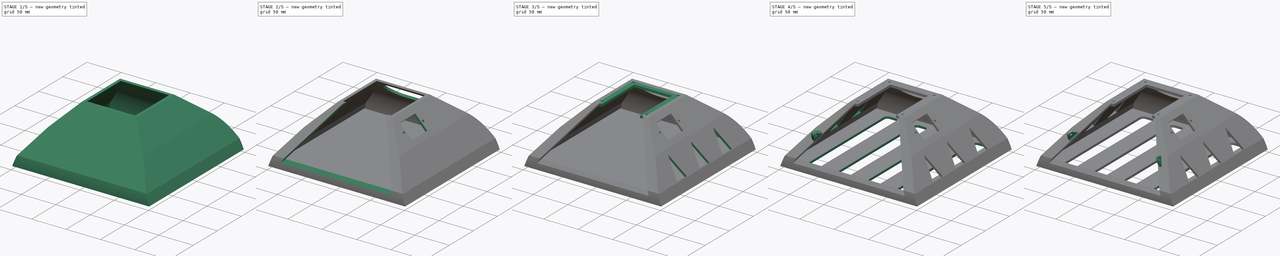
[diagram: build sequence overview — one tinted view per stage of 5, left to right]
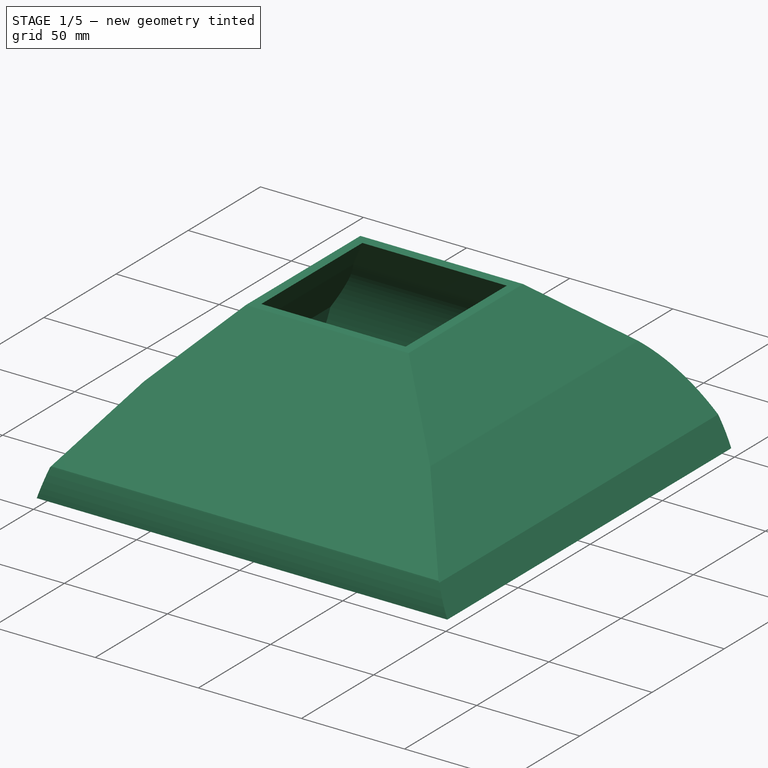
[diagram: stage 1 of 5 — iso view after this stage's code; geometry added in this stage tinted green]
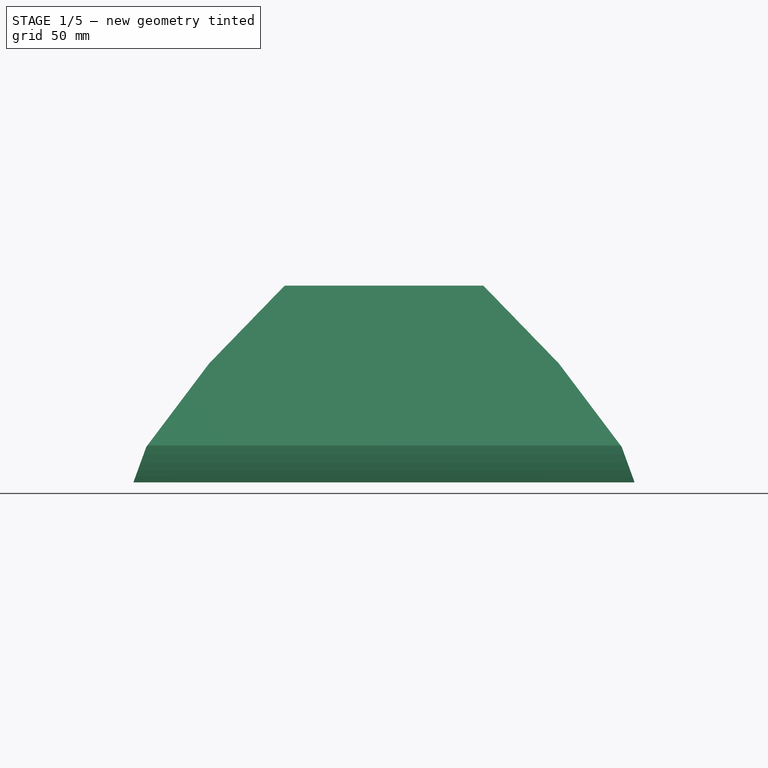
[diagram: stage 1 of 5 — front view after this stage's code; geometry added in this stage tinted green]
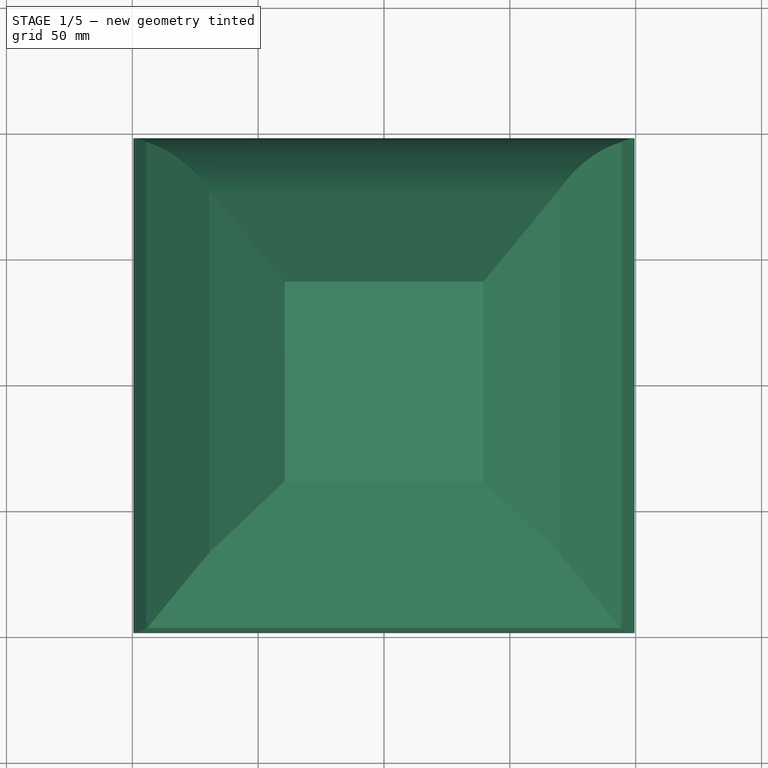
[diagram: stage 1 of 5 — top view after this stage's code; geometry added in this stage tinted green]
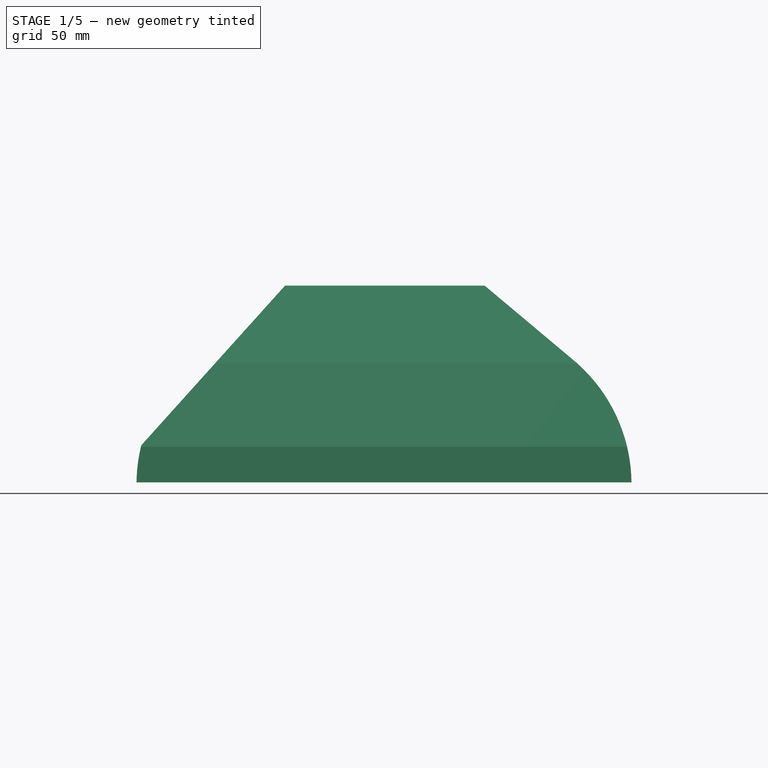
[diagram: stage 1 of 5 — right view after this stage's code; geometry added in this stage tinted green]
FCSTD DOCUMENT  (FreeCAD 0.21R33668 +26 (Git))
Label: 0_Base_Box
License: All rights reserved
LicenseURL: http://en.wikipedia.org/wiki/All_rights_reserved
objects: Sketcher::SketchObject×10, PartDesign::Pocket×8, PartDesign::Pad×3, PartDesign::Mirrored×3, PartDesign::Thickness×1, PartDesign::Body×1
note: 38 computed .brp shape members not serialized (recipe doc carries the construction recipe); baked Part::Feature solids carry a one-line shape summary decoded from their .brp

FEATURE [Sketcher::SketchObject] Sketch  label="YZ sketch"
  FullyConstrained = true
  MapMode = 5
  Placement = pos=(0,0,0) rot=(0.57735,0.57735,0.57735;2.0944rad)
  Support = -> [YZ_Plane]
  sketch-geometry (7):
    g0: LineSegment StartX=-95 StartY=-1.29e-14 StartZ=0 EndX=95 EndY=0 EndZ=0
    g1: LineSegment StartX=-35 StartY=75 StartZ=0 EndX=35 EndY=75 EndZ=0
    g2: ArcOfCircle CenterX=34.0288 CenterY=-3.94364 CenterZ=0 NormalX=0 NormalY=0 NormalZ=1 AngleXU=0 Radius=61.0986 StartAngle=0.0645903 EndAngle=0.872665
    g3: LineSegment StartX=93.5151 StartY=10 StartZ=0 EndX=-93.5151 EndY=10 EndZ=0
    g4: LineSegment StartX=-93.5151 StartY=10 StartZ=0 EndX=-35 EndY=75 EndZ=0
    g5: ArcOfCircle CenterX=-34.0288 CenterY=-3.94364 CenterZ=0 NormalX=0 NormalY=0 NormalZ=1 AngleXU=0 Radius=61.0986 StartAngle=2.91135 EndAngle=3.077
    g6: LineSegment StartX=35 StartY=75 StartZ=0 EndX=73.3022 EndY=42.8606 EndZ=0
  constraints (20):
    c: PointOnObject(g0,g-1)
    c: Symmetric(g0,g0,g-1)
    c: DistanceX(g0,g0) = 190
    c: Symmetric(g1,g1,g-2)
    c: DistanceX(g1,g1) = 70
    c: DistanceY(g0,g1) = 75
    c: Coincident(g0,g2)
    c: PointOnObject(g3,g2)
    c: Symmetric(g3,g3,g-2)
    c: Coincident(g4,g1)
    c: DistanceY(g0,g3) = 10
    c: Coincident(g5,g0)
    c: Coincident(g5,g4)
    c: Coincident(g4,g3)
    c: Equal(g5,g2)
    c: Angle(g0,g4) = 0.837853
    c: Coincident(g6,g1)
    c: Distance(g6) = 50
    c: Angle(g6,g0) = 0.698132
    c: Tangent(g2,g6) = 1.5708
FEATURE [PartDesign::Pad] Pad
  Direction = (1,-2e-16,3e-16)
  Length = 200
  Length2 = 10
  Midplane = true
  Placement = pos=(0,0,0) rot=(1,1,1;2.0944rad)
  Profile = -> Sketch
  ReferenceAxis = -> Sketch [N_Axis]
  Type = 0
FEATURE [Sketcher::SketchObject] Sketch001  label="XZ sketch"
  FullyConstrained = true
  MapMode = 5
  Placement = pos=(0,0,0) rot=(1,0,0;1.5708rad)
  Support = -> [XZ_Plane]
  sketch-geometry (12):
    g0: LineSegment StartX=-110 StartY=0 StartZ=0 EndX=-110 EndY=75 EndZ=0
    g1: LineSegment StartX=110 StartY=75 StartZ=0 EndX=110 EndY=0 EndZ=0
    g2: LineSegment StartX=110 StartY=0 StartZ=0 EndX=95 EndY=0 EndZ=0
    g3: LineSegment StartX=-110 StartY=0 StartZ=0 EndX=-95 EndY=0 EndZ=0
    g4: ArcOfCircle CenterX=8.2e-15 CenterY=-103.885 CenterZ=0 NormalX=0 NormalY=0 NormalZ=1 AngleXU=0 Radius=210 StartAngle=1.01948 EndAngle=2.12211
    g5: LineSegment StartX=-35 StartY=75 StartZ=0 EndX=35 EndY=75 EndZ=0
    g6: LineSegment StartX=-35 StartY=75 StartZ=0 EndX=-67.0265 EndY=41.9803 EndZ=0
    g7: LineSegment StartX=35 StartY=75 StartZ=0 EndX=67.0265 EndY=41.9803 EndZ=0
    g8: LineSegment StartX=-95 StartY=0 StartZ=0 EndX=-91.5798 EndY=9.39693 EndZ=0
    g9: LineSegment StartX=-91.5798 StartY=9.39693 StartZ=0 EndX=-67.0265 EndY=41.9803 EndZ=0
    g10: LineSegment StartX=95 StartY=0 StartZ=0 EndX=91.5798 EndY=9.39693 EndZ=0
    g11: LineSegment StartX=91.5798 StartY=9.39693 StartZ=0 EndX=67.0265 EndY=41.9803 EndZ=0
  constraints (33):
    c: PointOnObject(g3,g-1)
    c: PointOnObject(g1,g-1)
    c: Vertical(g1)
    c: Coincident(g1,g2)
    c: PointOnObject(g2,g-1)
    c: DistanceX(g0,g1) = 220
    c: Coincident(g0,g3)
    c: Vertical(g0)
    c: Symmetric(g0,g1,g-2)
    c: DistanceY(g0,g0) = 75
    c: Symmetric(g3,g2,g-2)
    c: DistanceX(g3,g2) = 190
    c: Coincident(g4,g1)
    c: Radius(g4) = 210
    c: Coincident(g4,g0)
    c: Horizontal(g5,g0)
    c: Symmetric(g5,g5,g-2)
    c: DistanceX(g5,g5) = 70
    c: Coincident(g6,g5)
    c: Coincident(g7,g5)
    c: Symmetric(g6,g7,g-2)
    c: Distance(g6) = 46
    c: Angle(g-1,g6) = 0.800667
    c: Coincident(g8,g3)
    c: Coincident(g9,g6)
    c: Coincident(g10,g2)
    c: Coincident(g11,g7)
    c: Distance(g8) = 10
    c: Coincident(g9,g8)
    c: Angle(g-1,g9) = 0.925025
    c: Angle(g-1,g8) = 1.22173
    c: Coincident(g11,g10)
    c: Symmetric(g8,g10,g-2)
FEATURE [PartDesign::Pocket] Pocket
  BaseFeature = -> Pad
  Direction = (0,1,2e-16)
  Length = 200
  Length2 = 5
  Midplane = true
  Placement = pos=(0,0,0) rot=(1,1,1;2.0944rad)
  Profile = -> Sketch001
  ReferenceAxis = -> Sketch001 [N_Axis]
  Type = 0
FEATURE [PartDesign::Thickness] Thickness
  Base = -> Pocket [Face11]
  BaseFeature = -> Pocket
  Intersection = false
  Join = 1
  Mode = 0
  SupportTransform = false
  Value = 3.2
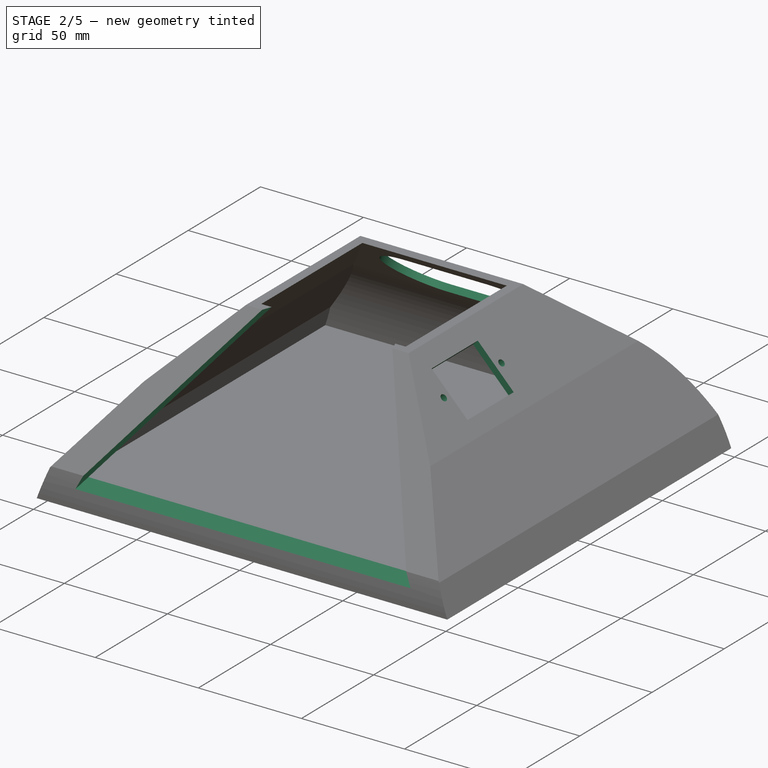
[diagram: stage 2 of 5 — iso view after this stage's code; geometry added in this stage tinted green]
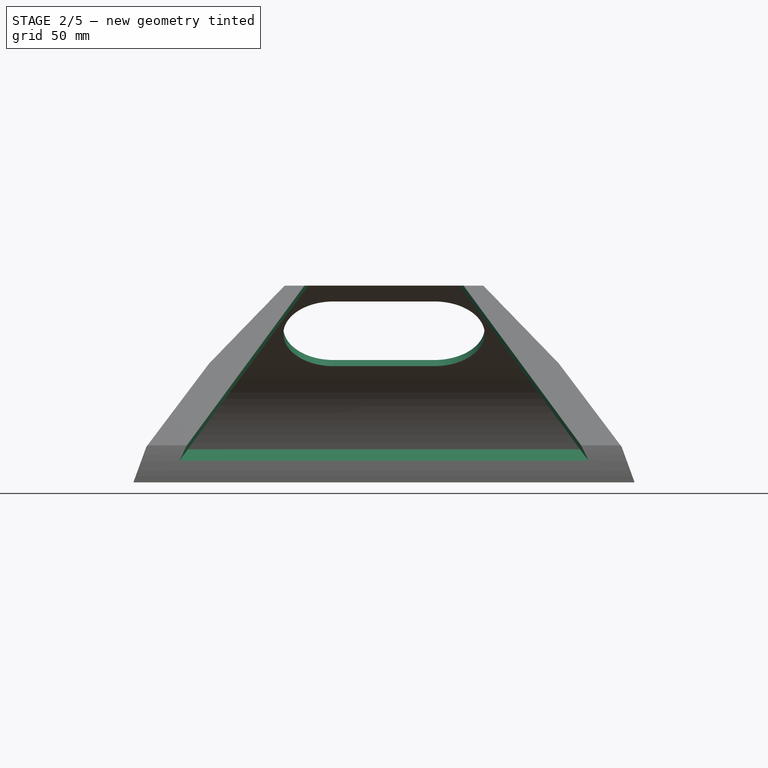
[diagram: stage 2 of 5 — front view after this stage's code; geometry added in this stage tinted green]
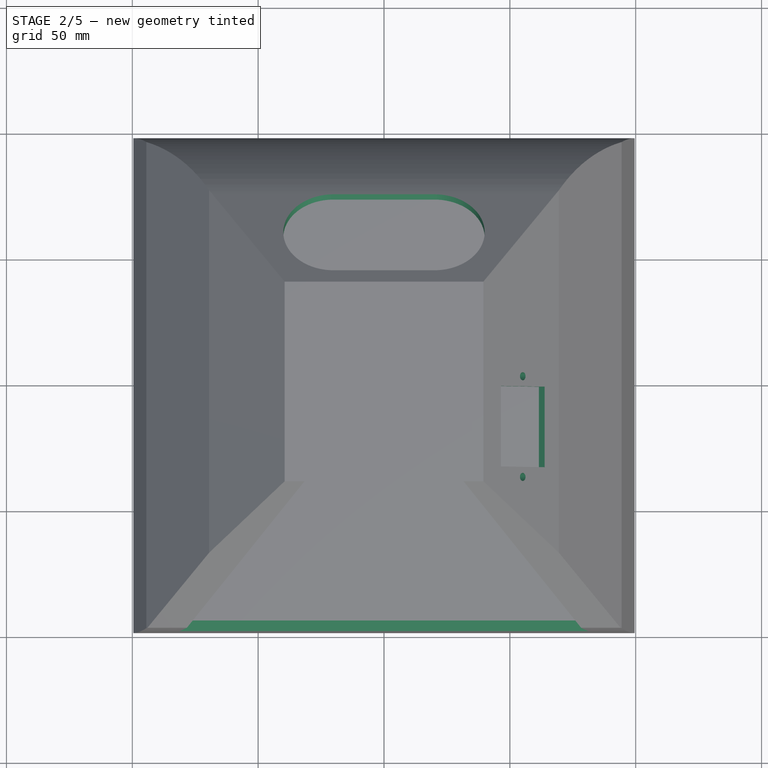
[diagram: stage 2 of 5 — top view after this stage's code; geometry added in this stage tinted green]
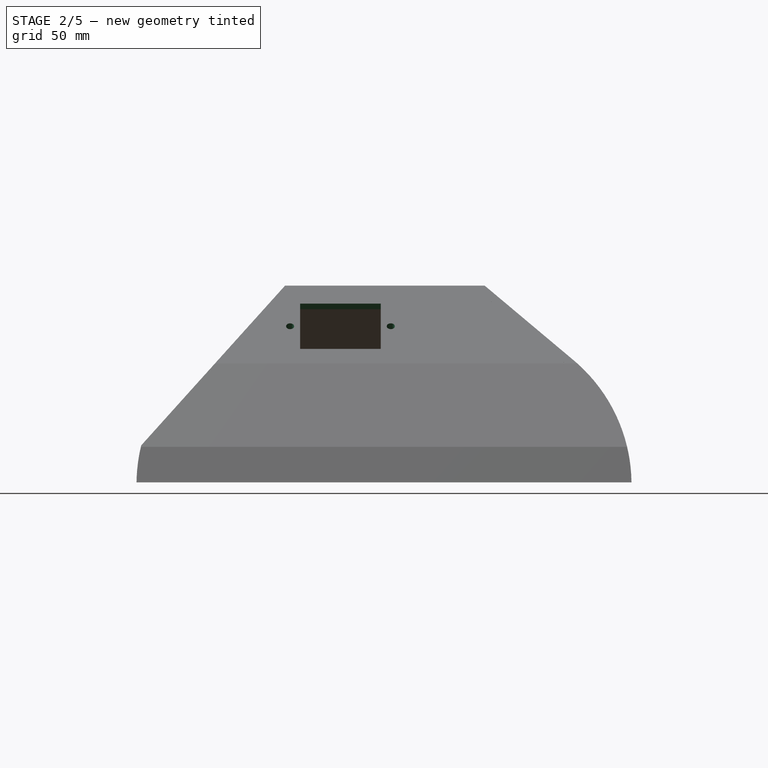
[diagram: stage 2 of 5 — right view after this stage's code; geometry added in this stage tinted green]
FEATURE [Sketcher::SketchObject] Sketch003  label="Doorway sketch"
  ExternalGeometry = -> [Thickness]
  FullyConstrained = true
  MapMode = 5
  Placement = pos=(-6.45e-14,-59.0047,53.1179) rot=(1,0,0;0.837853rad)
  Support = -> [Thickness]
  sketch-geometry (4):
    g0: LineSegment StartX=-85 StartY=-68.1623 StartZ=0 EndX=-30 EndY=32.3235 EndZ=0
    g1: LineSegment StartX=-30 StartY=32.3235 StartZ=0 EndX=30 EndY=32.3235 EndZ=0
    g2: LineSegment StartX=30 StartY=32.3235 StartZ=0 EndX=85 EndY=-68.1623 EndZ=0
    g3: LineSegment StartX=85 StartY=-68.1623 StartZ=0 EndX=-85 EndY=-68.1623 EndZ=0
  constraints (10):
    c: Coincident(g1,g0)
    c: Coincident(g3,g0)
    c: Symmetric(g0,g2,g-2)
    c: Coincident(g1,g2)
    c: Symmetric(g0,g3,g-2)
    c: Coincident(g2,g3)
    c: DistanceX(g3,g3) = 170
    c: DistanceX(g1,g1) = 60
    c: PointOnObject(g0,g-3)
    c: PointOnObject(g0,g-4)
FEATURE [PartDesign::Pocket] Pocket001  label="Doorway"
  BaseFeature = -> Thickness
  Direction = (8e-16,0.743209,-0.66906)
  Length = 3.2
  Length2 = 5
  Profile = -> Sketch003
  ReferenceAxis = -> Sketch003 [N_Axis]
  Type = 0
FEATURE [Sketcher::SketchObject] Sketch005  label="Button sketch"
  AttachmentOffset = pos=(0,0,0) rot=(0,0,1;1.5708rad)
  ExternalGeometry = -> [Pocket001]
  FullyConstrained = true
  MapMode = 5
  Placement = pos=(57.8139,6.2e-15,56.0748) rot=(0.389725,0,0.920931;3.14159rad)
  Support = -> [Pocket001]
  sketch-geometry (7):
    g0: LineSegment StartX=-8.63519 StartY=1.30566 StartZ=0 EndX=16.3648 EndY=1.30566 EndZ=0
    g1: LineSegment StartX=16.3648 StartY=1.30566 StartZ=0 EndX=16.3648 EndY=33.3057 EndZ=0
    g2: LineSegment StartX=16.3648 StartY=33.3057 StartZ=0 EndX=-8.63519 EndY=33.3057 EndZ=0
    g3: LineSegment StartX=-8.63519 StartY=33.3057 StartZ=0 EndX=-8.63519 EndY=1.30566 EndZ=0
    g4: Circle CenterX=3.86481 CenterY=37.3057 CenterZ=0 NormalX=0 NormalY=0 NormalZ=1 AngleXU=0 Radius=1.6
    g5: Circle CenterX=3.86481 CenterY=-2.69434 CenterZ=0 NormalX=0 NormalY=0 NormalZ=1 AngleXU=0 Radius=1.6
    g6: LineSegment StartX=3.86481 StartY=33.3057 StartZ=0 EndX=3.86481 EndY=1.30566 EndZ=0
  constraints (21):
    c: Coincident(g0,g1)
    c: Coincident(g1,g2)
    c: Coincident(g2,g3)
    c: Coincident(g3,g0)
    c: Horizontal(g0)
    c: Horizontal(g2)
    c: Vertical(g1)
    c: Vertical(g3)
    c: DistanceX(g2,g2) = 25
    c: DistanceY(g1,g1) = 32
    c: Equal(g4,g5)
    c: Diameter(g4) = 3.2
    c: PointOnObject(g6,g2)
    c: PointOnObject(g6,g0)
    c: Symmetric(g1,g2,g6)
    c: Vertical(g4,g6)
    c: Vertical(g6,g5)
    c: DistanceY(g1,g4) = 4
    c: DistanceY(g5,g0) = 4
    c: DistanceY(g1,g-3) = 6
    c: DistanceX(g1,g-3) = 10
FEATURE [PartDesign::Pocket] Pocket002  label="Button"
  Direction = (-0.717821,-1e-16,-0.696228)
  Length = 5
  Length2 = 5
  Profile = -> Sketch005
  ReferenceAxis = -> Sketch005 [N_Axis]
  Type = 0
FEATURE [Sketcher::SketchObject] Sketch006  label="Speaker sketch"
  ExternalGeometry = -> [Pocket002]
  FullyConstrained = true
  MapMode = 5
  Placement = pos=(-2.22e-14,53.4484,63.6973) rot=(-1,0,0;0.698132rad)
  Support = -> [Pocket002]
  sketch-geometry (8):
    g0: LineSegment StartX=-40 StartY=28.4161 StartZ=0 EndX=40 EndY=28.4161 EndZ=0
    g1: LineSegment StartX=40 StartY=28.4161 StartZ=0 EndX=40 EndY=-11.5839 EndZ=0
    g2: LineSegment StartX=40 StartY=-11.5839 StartZ=0 EndX=-40 EndY=-11.5839 EndZ=0
    g3: LineSegment StartX=-40 StartY=-11.5839 StartZ=0 EndX=-40 EndY=28.4161 EndZ=0
    g4: LineSegment StartX=-20 StartY=28.4161 StartZ=0 EndX=20 EndY=28.4161 EndZ=0
    g5: LineSegment StartX=-20 StartY=-11.5839 StartZ=0 EndX=20 EndY=-11.5839 EndZ=0
    g6: ArcOfCircle CenterX=-20 CenterY=8.4161 CenterZ=0 NormalX=0 NormalY=0 NormalZ=1 AngleXU=0 Radius=20 StartAngle=1.5708 EndAngle=4.71239
    g7: ArcOfCircle CenterX=20 CenterY=8.4161 CenterZ=0 NormalX=0 NormalY=0 NormalZ=1 AngleXU=0 Radius=20 StartAngle=4.71239 EndAngle=7.85398
  constraints (20):
    c: Coincident(g0,g1)
    c: Coincident(g1,g2)
    c: Coincident(g2,g3)
    c: Coincident(g3,g0)
    c: Horizontal(g2)
    c: Vertical(g1)
    c: Vertical(g3)
    c: Symmetric(g0,g0,g-2)
    c: DistanceY(g-3,g1) = 6
    c: Horizontal(g5)
    c: Tangent(g6,g3)
    c: Tangent(g7,g1)
    c: Tangent(g4,g0) = -1.5708
    c: DistanceY(g1,g1) = 40
    c: DistanceX(g2,g2) = 80
    c: PointOnObject(g5,g2)
    c: Tangent(g6,g4) = 1.5708
    c: Tangent(g6,g5) = -1.5708
    c: Tangent(g7,g5) = -1.5708
    c: Tangent(g4,g7) = 1.5708
FEATURE [PartDesign::Pocket] Pocket003  label="Speaker"
  BaseFeature = -> Pocket002
  Direction = (3e-16,-0.642788,-0.766044)
  Length = 5
  Length2 = 5
  Profile = -> Sketch006
  ReferenceAxis = -> Sketch006 [N_Axis]
  Type = 0
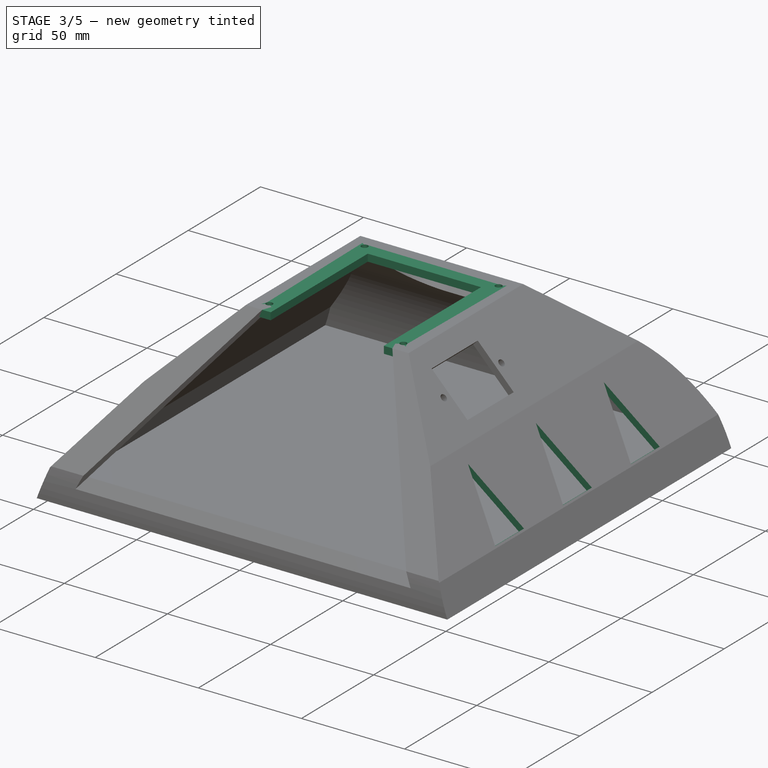
[diagram: stage 3 of 5 — iso view after this stage's code; geometry added in this stage tinted green]
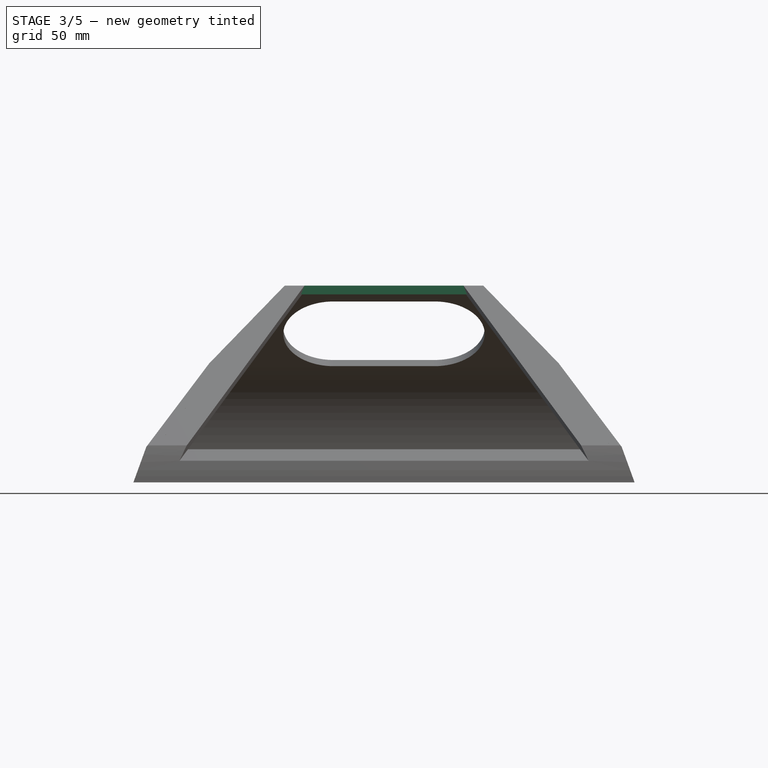
[diagram: stage 3 of 5 — front view after this stage's code; geometry added in this stage tinted green]
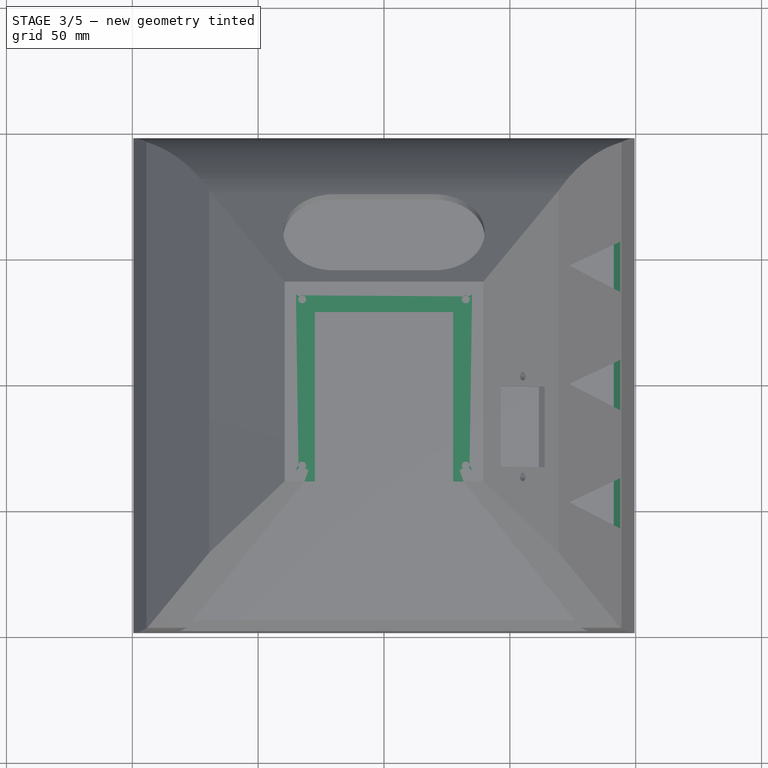
[diagram: stage 3 of 5 — top view after this stage's code; geometry added in this stage tinted green]
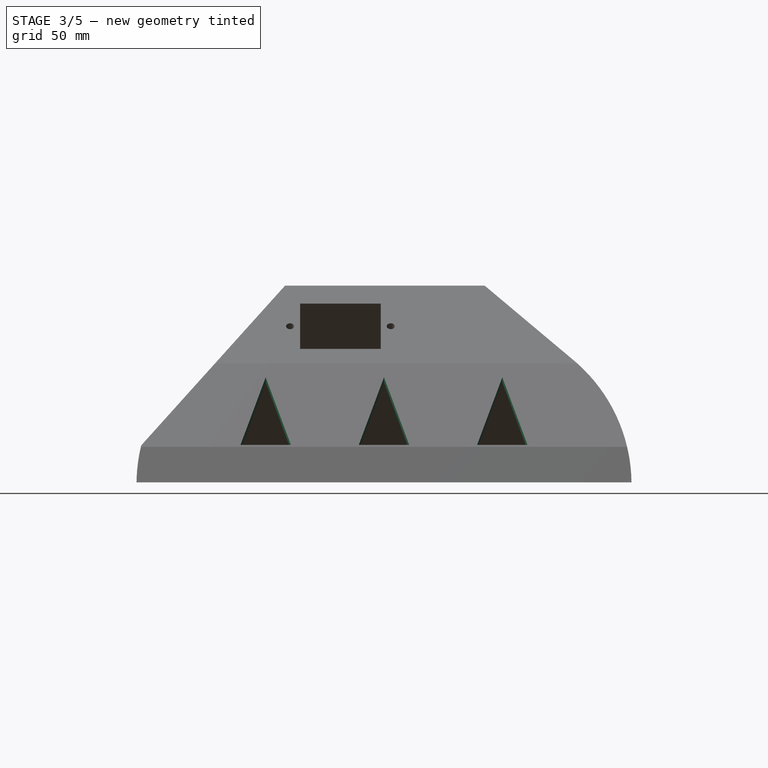
[diagram: stage 3 of 5 — right view after this stage's code; geometry added in this stage tinted green]
FEATURE [Sketcher::SketchObject] Sketch007  label="Top sketch"
  ExternalGeometry = -> [Pocket003]
  FullyConstrained = true
  MapMode = 5
  Placement = pos=(-5.41e-14,5e-14,75) rot=(0,0,1;0rad)
  Support = -> [Pocket003]
  sketch-geometry (8):
    g0: LineSegment StartX=-27.4579 StartY=-39.3057 StartZ=0 EndX=-27.4579 EndY=27.9783 EndZ=0
    g1: LineSegment StartX=-27.4579 StartY=27.9783 StartZ=0 EndX=27.4579 EndY=27.9783 EndZ=0
    g2: LineSegment StartX=39.4579 StartY=-39.3057 StartZ=0 EndX=39.4579 EndY=39.9783 EndZ=0
    g3: LineSegment StartX=39.4579 StartY=39.9783 StartZ=0 EndX=-39.4579 EndY=39.9783 EndZ=0
    g4: LineSegment StartX=-39.4579 StartY=39.9783 StartZ=0 EndX=-39.4579 EndY=-39.3057 EndZ=0
    g5: LineSegment StartX=-39.4579 StartY=-39.3057 StartZ=0 EndX=-27.4579 EndY=-39.3057 EndZ=0
    g6: LineSegment StartX=27.4579 StartY=27.9783 StartZ=0 EndX=27.4579 EndY=-39.3057 EndZ=0
    g7: LineSegment StartX=27.4579 StartY=-39.3057 StartZ=0 EndX=39.4579 EndY=-39.3057 EndZ=0
  constraints (20):
    c: Coincident(g0,g1)
    c: Vertical(g2)
    c: Coincident(g2,g3)
    c: Coincident(g3,g4)
    c: Coincident(g4,g5)
    c: Coincident(g5,g0)
    c: Symmetric(g1,g0,g-2)
    c: Horizontal(g5)
    c: Horizontal(g4,g2)
    c: Coincident(g3,g-3)
    c: Coincident(g4,g-3)
    c: Symmetric(g2,g3,g-2)
    c: Vertical(g0)
    c: Coincident(g1,g6)
    c: Vertical(g6)
    c: Coincident(g6,g7)
    c: Coincident(g7,g2)
    c: Horizontal(g7)
    c: DistanceX(g5,g5) = 12
    c: DistanceY(g0,g3) = 12
FEATURE [PartDesign::Pad] Pad001  label="Top"
  BaseFeature = -> Pocket003
  Direction = (-7e-16,7e-16,1)
  Length = 3.5
  Length2 = 10
  Profile = -> Sketch007
  ReferenceAxis = -> Sketch007 [N_Axis]
  Reversed = true
  Type = 0
FEATURE [Sketcher::SketchObject] Sketch008  label="Top holes sketch"
  ExternalGeometry = -> [Pad001]
  FullyConstrained = true
  MapMode = 5
  Placement = pos=(-5.52e-14,5.1e-14,75) rot=(0,0,1;0rad)
  Support = -> [Pad001]
  sketch-geometry (8):
    g0: LineSegment StartX=-32.5 StartY=33 StartZ=0 EndX=32.5 EndY=33 EndZ=0
    g1: LineSegment StartX=32.5 StartY=33 StartZ=0 EndX=32.5 EndY=-33 EndZ=0
    g2: LineSegment StartX=32.5 StartY=-33 StartZ=0 EndX=-32.5 EndY=-33 EndZ=0
    g3: LineSegment StartX=-32.5 StartY=-33 StartZ=0 EndX=-32.5 EndY=33 EndZ=0
    g4: Circle CenterX=-32.5 CenterY=33 CenterZ=0 NormalX=0 NormalY=0 NormalZ=1 AngleXU=0 Radius=1.6
    g5: Circle CenterX=32.5 CenterY=33 CenterZ=0 NormalX=0 NormalY=0 NormalZ=1 AngleXU=0 Radius=1.6
    g6: Circle CenterX=-32.5 CenterY=-33 CenterZ=0 NormalX=0 NormalY=0 NormalZ=1 AngleXU=0 Radius=1.6
    g7: Circle CenterX=32.5 CenterY=-33 CenterZ=0 NormalX=0 NormalY=0 NormalZ=1 AngleXU=0 Radius=1.6
  constraints (21):
    c: Coincident(g0,g1)
    c: Coincident(g1,g2)
    c: Coincident(g2,g3)
    c: Coincident(g3,g0)
    c: Horizontal(g0)
    c: Horizontal(g2)
    c: Vertical(g1)
    c: Vertical(g3)
    c: Symmetric(g1,g0,g-1)
    c: DistanceY(g-3,g0) = 5.02168
    c: DistanceX(g0,g-3) = 5.04206
    c: DistanceX(g2,g2) = 65
    c: DistanceY(g1,g1) = 66
    c: Equal(g4,g5)
    c: Equal(g5,g7)
    c: Equal(g7,g6)
    c: Coincident(g4,g0)
    c: Coincident(g5,g0)
    c: Coincident(g6,g2)
    c: Coincident(g7,g1)
    c: Diameter(g4) = 3.2
FEATURE [PartDesign::Pocket] Pocket004  label="Top holes"
  BaseFeature = -> Pad001
  Direction = (7e-16,-7e-16,-1)
  Length = 5
  Length2 = 5
  Profile = -> Sketch008
  ReferenceAxis = -> Sketch008 [N_Axis]
  Type = 0
FEATURE [Sketcher::SketchObject] Sketch009  label="Side cooling holes"
  ExternalGeometry = -> [Pocket004]
  FullyConstrained = true
  MapMode = 5
  Placement = pos=(65.4834,5.5e-15,49.3453) rot=(0.407475,0.407475,0.817269;1.77123rad)
  Support = -> [Pocket004]
  sketch-geometry (9):
    g0: LineSegment StartX=-57 StartY=-47.0876 StartZ=0 EndX=-47 EndY=-13.5466 EndZ=0
    g1: LineSegment StartX=-47 StartY=-13.5466 StartZ=0 EndX=-37 EndY=-47.0876 EndZ=0
    g2: LineSegment StartX=-37 StartY=-47.0876 StartZ=0 EndX=-57 EndY=-47.0876 EndZ=0
    g3: LineSegment StartX=-10 StartY=-47.0876 StartZ=0 EndX=0 EndY=-13.5466 EndZ=0
    g4: LineSegment StartX=0 StartY=-13.5466 StartZ=0 EndX=10 EndY=-47.0876 EndZ=0
    g5: LineSegment StartX=10 StartY=-47.0876 StartZ=0 EndX=-10 EndY=-47.0876 EndZ=0
    g6: LineSegment StartX=37 StartY=-47.0876 StartZ=0 EndX=47 EndY=-13.5466 EndZ=0
    g7: LineSegment StartX=47 StartY=-13.5466 StartZ=0 EndX=57 EndY=-47.0876 EndZ=0
    g8: LineSegment StartX=57 StartY=-47.0876 StartZ=0 EndX=37 EndY=-47.0876 EndZ=0
  constraints (27):
    c: Coincident(g0,g1)
    c: Coincident(g1,g2)
    c: Coincident(g2,g0)
    c: PointOnObject(g3,g-2)
    c: Coincident(g3,g4)
    c: Coincident(g4,g5)
    c: Coincident(g5,g3)
    c: Coincident(g6,g7)
    c: Coincident(g7,g8)
    c: Coincident(g8,g6)
    c: Horizontal(g5)
    c: Horizontal(g8)
    c: Horizontal(g2)
    c: Horizontal(g1,g3)
    c: Horizontal(g4,g6)
    c: DistanceY(g-3,g7) = 1
    c: DistanceX(g8,g8) = 20
    c: Equal(g8,g5)
    c: Equal(g5,g2)
    c: Equal(g0,g1)
    c: Equal(g1,g3)
    c: Equal(g3,g4)
    c: Equal(g4,g6)
    c: Equal(g6,g7)
    c: DistanceX(g1,g3) = 27
    c: DistanceX(g4,g6) = 27
    c: Distance(g0) = 35
FEATURE [PartDesign::Pocket] Pocket005  label="Left cooling"
  BaseFeature = -> Pocket004
  Direction = (-0.798636,-1e-16,-0.601815)
  Length = 5
  Length2 = 5
  Profile = -> Sketch009
  ReferenceAxis = -> Sketch009 [N_Axis]
  Type = 0
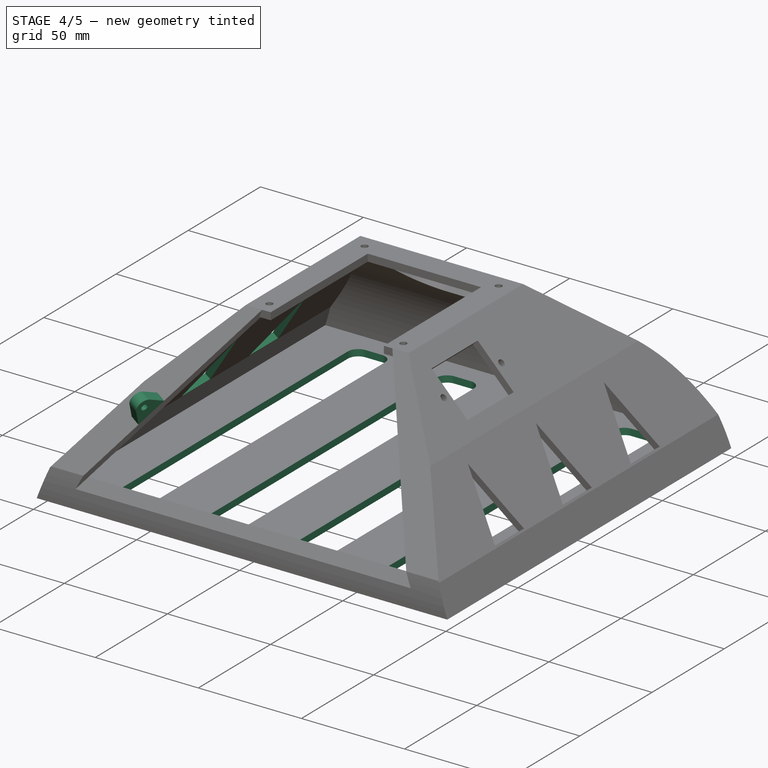
[diagram: stage 4 of 5 — iso view after this stage's code; geometry added in this stage tinted green]
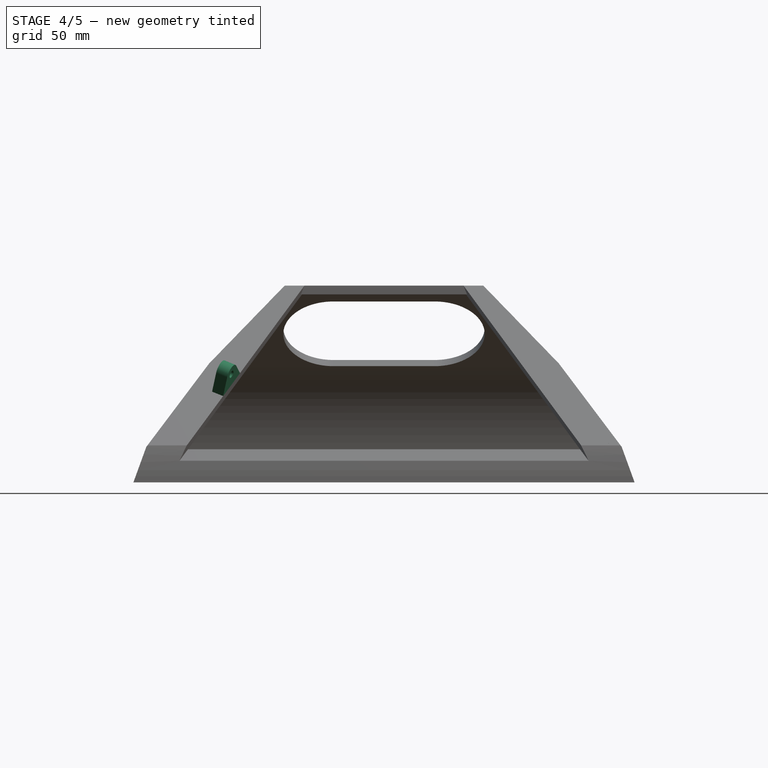
[diagram: stage 4 of 5 — front view after this stage's code; geometry added in this stage tinted green]
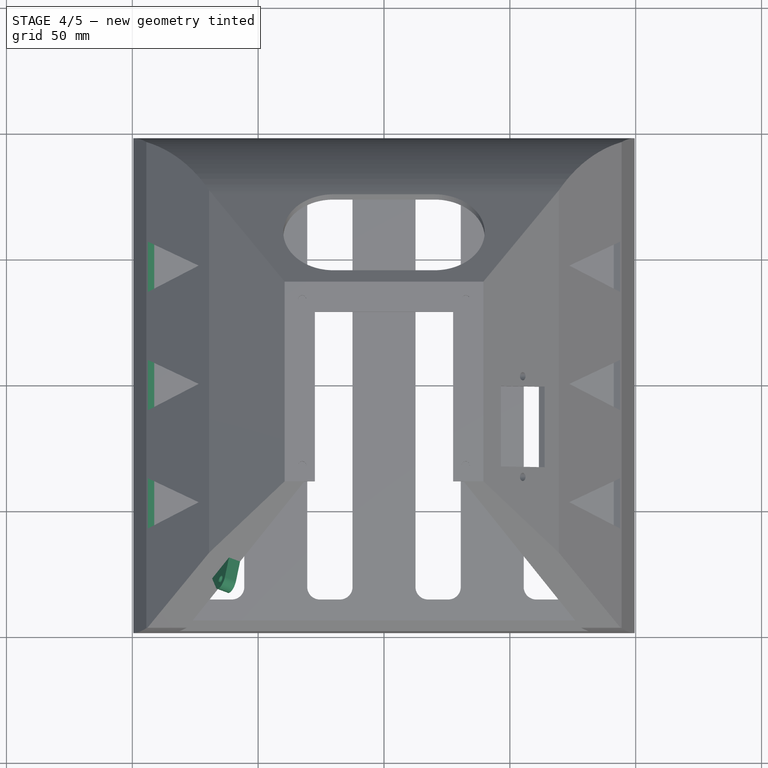
[diagram: stage 4 of 5 — top view after this stage's code; geometry added in this stage tinted green]
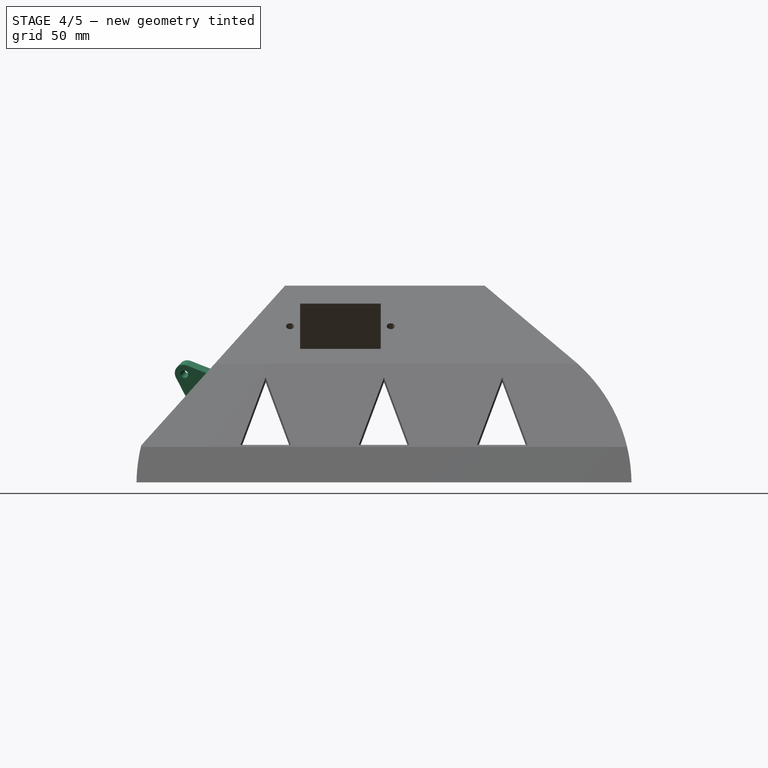
[diagram: stage 4 of 5 — right view after this stage's code; geometry added in this stage tinted green]
FEATURE [PartDesign::Mirrored] Mirrored
  BaseFeature = -> Pocket005
  MirrorPlane = -> YZ_Plane
  Originals = -> [Pocket005]
FEATURE [Sketcher::SketchObject] Sketch010  label="Bottom cooling sketch"
  FullyConstrained = true
  MapMode = 5
  Placement = pos=(2.3e-15,-1.9e-15,-3.2) rot=(1,0,0;3.14159rad)
  Support = -> [Mirrored]
  sketch-geometry (32):
    g0: LineSegment StartX=-68.5 StartY=-85 StartZ=0 EndX=-60.5 EndY=-85 EndZ=0
    g1: LineSegment StartX=-55.5 StartY=-80 StartZ=0 EndX=-55.5 EndY=80 EndZ=0
    g2: LineSegment StartX=-60.5 StartY=85 StartZ=0 EndX=-68.5 EndY=85 EndZ=0
    g3: LineSegment StartX=-73.5 StartY=80 StartZ=0 EndX=-73.5 EndY=-80 EndZ=0
    g4: LineSegment StartX=-25.5 StartY=-85 StartZ=0 EndX=-17.5 EndY=-85 EndZ=0
    g5: LineSegment StartX=-12.5 StartY=-80 StartZ=0 EndX=-12.5 EndY=80 EndZ=0
    g6: LineSegment StartX=-17.5 StartY=85 StartZ=0 EndX=-25.5 EndY=85 EndZ=0
    g7: LineSegment StartX=-30.5 StartY=80 StartZ=0 EndX=-30.5 EndY=-80 EndZ=0
    g8: LineSegment StartX=17.5 StartY=-85 StartZ=0 EndX=25.5 EndY=-85 EndZ=0
    g9: LineSegment StartX=30.5 StartY=-80 StartZ=0 EndX=30.5 EndY=80 EndZ=0
    g10: LineSegment StartX=25.5 StartY=85 StartZ=0 EndX=17.5 EndY=85 EndZ=0
    g11: LineSegment StartX=12.5 StartY=80 StartZ=0 EndX=12.5 EndY=-80 EndZ=0
    g12: LineSegment StartX=60.5 StartY=-85 StartZ=0 EndX=68.5 EndY=-85 EndZ=0
    g13: LineSegment StartX=73.5 StartY=-80 StartZ=0 EndX=73.5 EndY=80 EndZ=0
    g14: LineSegment StartX=68.5 StartY=85 StartZ=0 EndX=60.5 EndY=85 EndZ=0
    g15: LineSegment StartX=55.5 StartY=80 StartZ=0 EndX=55.5 EndY=-80 EndZ=0
    g16: ArcOfCircle CenterX=-68.5 CenterY=80 CenterZ=0 NormalX=0 NormalY=0 NormalZ=1 AngleXU=0 Radius=5 StartAngle=1.5708 EndAngle=3.14159
    g17: ArcOfCircle CenterX=-60.5 CenterY=80 CenterZ=0 NormalX=0 NormalY=0 NormalZ=1 AngleXU=0 Radius=5 StartAngle=2e-16 EndAngle=1.5708
    g18: ArcOfCircle CenterX=-25.5 CenterY=80 CenterZ=0 NormalX=0 NormalY=0 NormalZ=1 AngleXU=0 Radius=5 StartAngle=1.5708 EndAngle=3.14159
    g19: ArcOfCircle CenterX=-17.5 CenterY=80 CenterZ=0 NormalX=0 NormalY=0 NormalZ=1 AngleXU=0 Radius=5 StartAngle=8e-16 EndAngle=1.5708
    g20: ArcOfCircle CenterX=17.5 CenterY=80 CenterZ=0 NormalX=0 NormalY=0 NormalZ=1 AngleXU=0 Radius=5 StartAngle=1.5708 EndAngle=3.14159
    g21: ArcOfCircle CenterX=25.5 CenterY=80 CenterZ=0 NormalX=0 NormalY=0 NormalZ=1 AngleXU=0 Radius=5 StartAngle=1.3e-15 EndAngle=1.5708
    g22: ArcOfCircle CenterX=60.5 CenterY=80 CenterZ=0 NormalX=0 NormalY=0 NormalZ=1 AngleXU=0 Radius=5 StartAngle=1.5708 EndAngle=3.14159
    g23: ArcOfCircle CenterX=68.5 CenterY=80 CenterZ=0 NormalX=0 NormalY=0 NormalZ=1 AngleXU=0 Radius=5 StartAngle=-9e-16 EndAngle=1.5708
    g24: ArcOfCircle CenterX=-68.5 CenterY=-80 CenterZ=0 NormalX=0 NormalY=0 NormalZ=1 AngleXU=0 Radius=5 StartAngle=3.14159 EndAngle=4.71239
    g25: ArcOfCircle CenterX=-60.5 CenterY=-80 CenterZ=0 NormalX=0 NormalY=0 NormalZ=1 AngleXU=0 Radius=5 StartAngle=4.71239 EndAngle=6.28319
    g26: ArcOfCircle CenterX=-25.5 CenterY=-80 CenterZ=0 NormalX=0 NormalY=0 NormalZ=1 AngleXU=0 Radius=5 StartAngle=3.14159 EndAngle=4.71239
    g27: ArcOfCircle CenterX=-17.5 CenterY=-80 CenterZ=0 NormalX=0 NormalY=0 NormalZ=1 AngleXU=0 Radius=5 StartAngle=4.71239 EndAngle=6.28319
    g28: ArcOfCircle CenterX=17.5 CenterY=-80 CenterZ=0 NormalX=0 NormalY=0 NormalZ=1 AngleXU=0 Radius=5 StartAngle=3.14159 EndAngle=4.71239
    g29: ArcOfCircle CenterX=25.5 CenterY=-80 CenterZ=0 NormalX=0 NormalY=0 NormalZ=1 AngleXU=0 Radius=5 StartAngle=4.71239 EndAngle=6.28319
    g30: ArcOfCircle CenterX=60.5 CenterY=-80 CenterZ=0 NormalX=0 NormalY=0 NormalZ=1 AngleXU=0 Radius=5 StartAngle=3.14159 EndAngle=4.71239
    g31: ArcOfCircle CenterX=68.5 CenterY=-80 CenterZ=0 NormalX=0 NormalY=0 NormalZ=1 AngleXU=0 Radius=5 StartAngle=4.71239 EndAngle=6.28319
  constraints (79):
    c: Horizontal(g0)
    c: Horizontal(g2)
    c: Vertical(g1)
    c: Vertical(g3)
    c: Horizontal(g4)
    c: Horizontal(g6)
    c: Vertical(g5)
    c: Vertical(g7)
    c: Horizontal(g8)
    c: Horizontal(g10)
    c: Vertical(g9)
    c: Vertical(g11)
    c: Horizontal(g12)
    c: Horizontal(g14)
    c: Vertical(g13)
    c: Vertical(g15)
    c: Tangent(g2,g16) = -1.5708
    c: Tangent(g3,g16) = -1.5708
    c: Tangent(g1,g17) = -1.5708
    c: Tangent(g2,g17) = -1.5708
    c: Tangent(g6,g18) = -1.5708
    c: Tangent(g7,g18) = -1.5708
    c: Tangent(g5,g19) = -1.5708
    c: Tangent(g6,g19) = -1.5708
    c: Tangent(g10,g20) = -1.5708
    c: Tangent(g11,g20) = -1.5708
    c: Tangent(g9,g21) = -1.5708
    c: Tangent(g10,g21) = -1.5708
    c: Tangent(g14,g22) = -1.5708
    c: Tangent(g15,g22) = -1.5708
    c: Tangent(g13,g23) = -1.5708
    c: Tangent(g14,g23) = -1.5708
    c: Tangent(g0,g24) = -1.5708
    c: Tangent(g3,g24) = -1.5708
    c: Tangent(g0,g25) = -1.5708
    c: Tangent(g1,g25) = -1.5708
    c: Tangent(g4,g26) = -1.5708
    c: Tangent(g7,g26) = -1.5708
    c: Tangent(g4,g27) = -1.5708
    c: Tangent(g5,g27) = -1.5708
    c: Tangent(g8,g28) = -1.5708
    c: Tangent(g11,g28) = -1.5708
    c: Tangent(g8,g29) = -1.5708
    c: Tangent(g9,g29) = -1.5708
    c: Tangent(g12,g30) = -1.5708
    c: Tangent(g15,g30) = -1.5708
    c: Tangent(g12,g31) = -1.5708
    c: Tangent(g13,g31) = -1.5708
    c: Equal(g16,g17)
    c: Equal(g17,g18)
    c: Equal(g18,g19)
    c: Equal(g19,g20)
    c: Equal(g20,g21)
    c: Equal(g21,g22)
    c: Equal(g22,g23)
    c: Equal(g16,g24)
    c: Equal(g24,g25)
    c: Equal(g25,g26)
    c: Equal(g26,g27)
    c: Equal(g27,g28)
    c: Equal(g28,g29)
    c: Equal(g29,g30)
    c: Equal(g30,g31)
    c: Symmetric(g11,g5,g-1)
    c: Horizontal(g1,g7)
    c: Horizontal(g5,g11)
    c: Horizontal(g9,g15)
    c: Horizontal(g1,g7)
    c: Horizontal(g5,g11)
    c: Horizontal(g9,g15)
    c: DistanceX(g3,g1) = 18
    c: Equal(g2,g6)
    c: Equal(g6,g10)
    c: Equal(g10,g14)
    c: DistanceY(g3,g3) = 160
    c: DistanceX(g5,g11) = 25
    c: DistanceX(g1,g7) = 25
    c: DistanceX(g9,g15) = 25
    c: Radius(g24) = 5
FEATURE [PartDesign::Pocket] Pocket006  label="Bottom cooling"
  BaseFeature = -> Mirrored
  Direction = (-7e-16,6e-16,1)
  Length = 5
  Length2 = 5
  Profile = -> Sketch010
  ReferenceAxis = -> Sketch010 [N_Axis]
  Type = 0
FEATURE [Sketcher::SketchObject] Sketch011  label="Door bracket sketch"
  ExternalGeometry = -> [Pocket006]
  FullyConstrained = true
  MapMode = 5
  Placement = pos=(-36.698,13.4389,14.9283) rot=(0.735376,0.588431,0.336111;2.12897rad)
  Support = -> [Pocket006]
  sketch-geometry (6):
    g0: LineSegment StartX=-97.4315 StartY=4.72336 StartZ=0 EndX=-88.755 EndY=15.7106 EndZ=0
    g1: LineSegment StartX=-88.755 StartY=15.7106 StartZ=0 EndX=-96.9133 EndY=17.9203 EndZ=0
    g2: LineSegment StartX=-97.4315 StartY=4.72336 StartZ=0 EndX=-101.472 EndY=12.1471 EndZ=0
    g3: ArcOfCircle CenterX=-97.959 CenterY=14.0594 CenterZ=0 NormalX=0 NormalY=0 NormalZ=1 AngleXU=0 Radius=4 StartAngle=1.30629 EndAngle=3.64006
    g4: LineSegment StartX=-97.959 StartY=14.0594 StartZ=0 EndX=-93.0932 EndY=10.217 EndZ=0
    g5: Circle CenterX=-97.959 CenterY=14.0594 CenterZ=0 NormalX=0 NormalY=0 NormalZ=1 AngleXU=0 Radius=1.6
  constraints (15):
    c: Coincident(g0,g1)
    c: Coincident(g0,g2)
    c: Distance(g0) = 14
    c: PointOnObject(g0,g-3)
    c: PointOnObject(g0,g-3)
    c: Coincident(g4,g3)
    c: PointOnObject(g4,g0)
    c: Symmetric(g0,g0,g4)
    c: Tangent(g3,g2) = 1.5708
    c: Tangent(g3,g1) = -1.5708
    c: Distance(g4) = 6.2
    c: Radius(g3) = 4
    c: Diameter(g5) = 3.2
    c: Coincident(g3,g5)
    c: Distance(g-3,g0) = 30
FEATURE [PartDesign::Pad] Pad002  label="Left bracket"
  BaseFeature = -> Pocket006
  Direction = (0.877199,-0.321234,-0.356834)
  Length = 5
  Length2 = 10
  Profile = -> Sketch011
  ReferenceAxis = -> Sketch011 [N_Axis]
  Reversed = true
  Type = 0
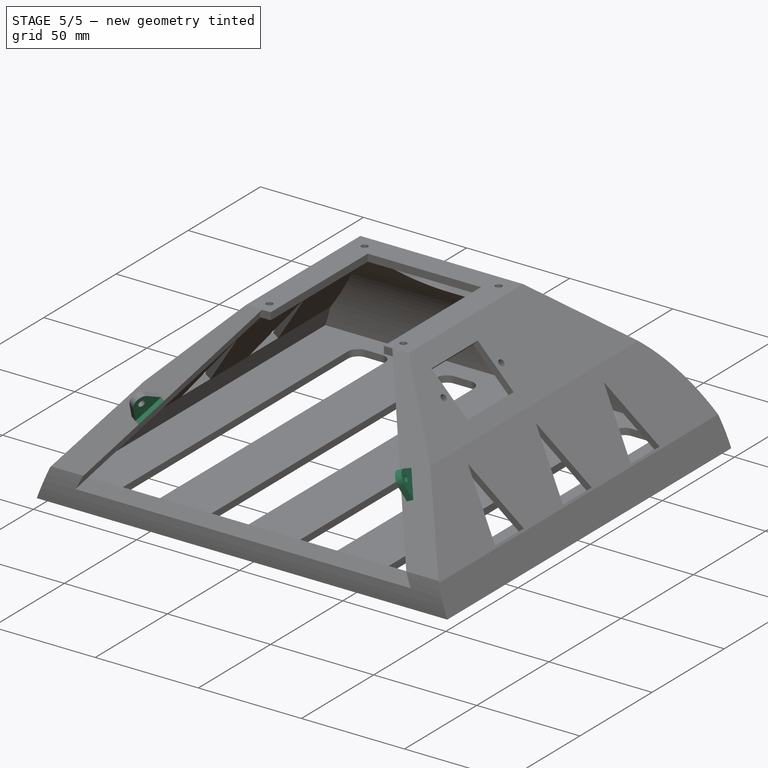
[diagram: stage 5 of 5 — iso view after this stage's code; geometry added in this stage tinted green]
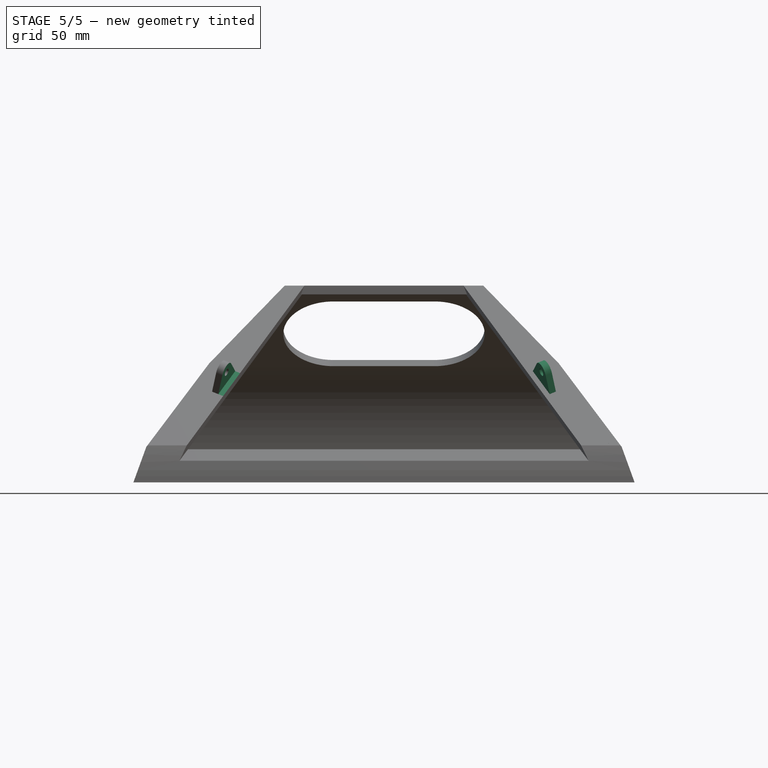
[diagram: stage 5 of 5 — front view after this stage's code; geometry added in this stage tinted green]
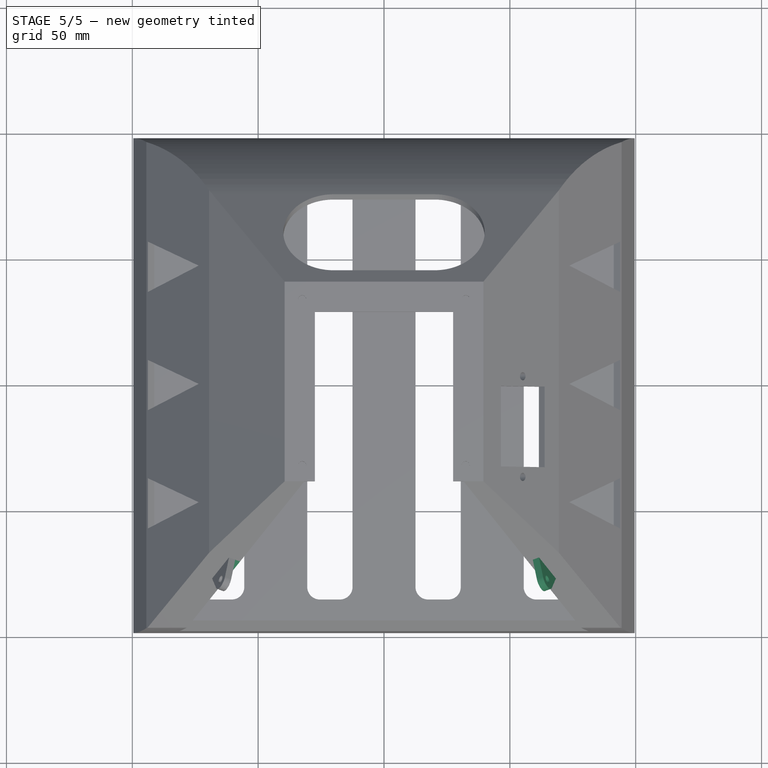
[diagram: stage 5 of 5 — top view after this stage's code; geometry added in this stage tinted green]
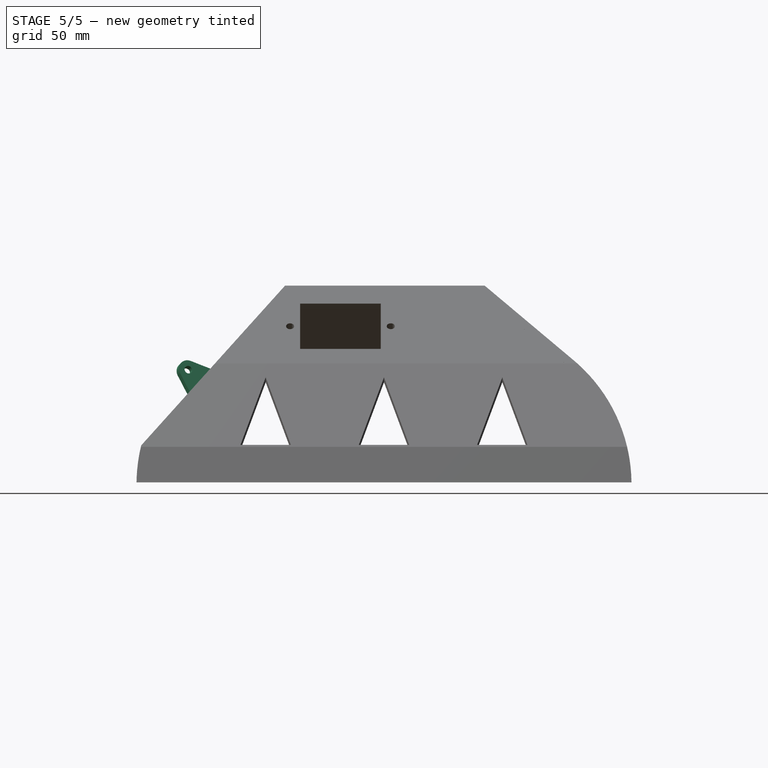
[diagram: stage 5 of 5 — right view after this stage's code; geometry added in this stage tinted green]
FEATURE [PartDesign::Pocket] Pocket007  label="Left bracket shift"
  BaseFeature = -> Pad002
  Direction = (-0.877199,0.321234,0.356834)
  Length = 2.2
  Length2 = 5
  Profile = -> Sketch011
  ReferenceAxis = -> Sketch011 [N_Axis]
  Type = 0
FEATURE [PartDesign::Mirrored] Mirrored001  label="Right bracket"
  BaseFeature = -> Pocket007
  MirrorPlane = -> YZ_Plane
  Originals = -> [Pad002]
FEATURE [PartDesign::Mirrored] Mirrored002  label="Right bracket shift"
  BaseFeature = -> Mirrored001
  MirrorPlane = -> YZ_Plane
  Originals = -> [Pocket007]
FEATURE [PartDesign::Body] Body
  Group = -> [Sketch,Pad,Sketch001,Pocket,Thickness,Sketch003,Pocket001,Sketch005,Pocket002,Sketch006,Pocket003,Sketch007,Pad001,Sketch008,Pocket004,Sketch009,Pocket005,Mirrored,Sketch010,Pocket006,Sketch011,Pad002,Pocket007,Mirrored001,Mirrored002]
  Origin = -> Origin
  Tip = -> Mirrored002
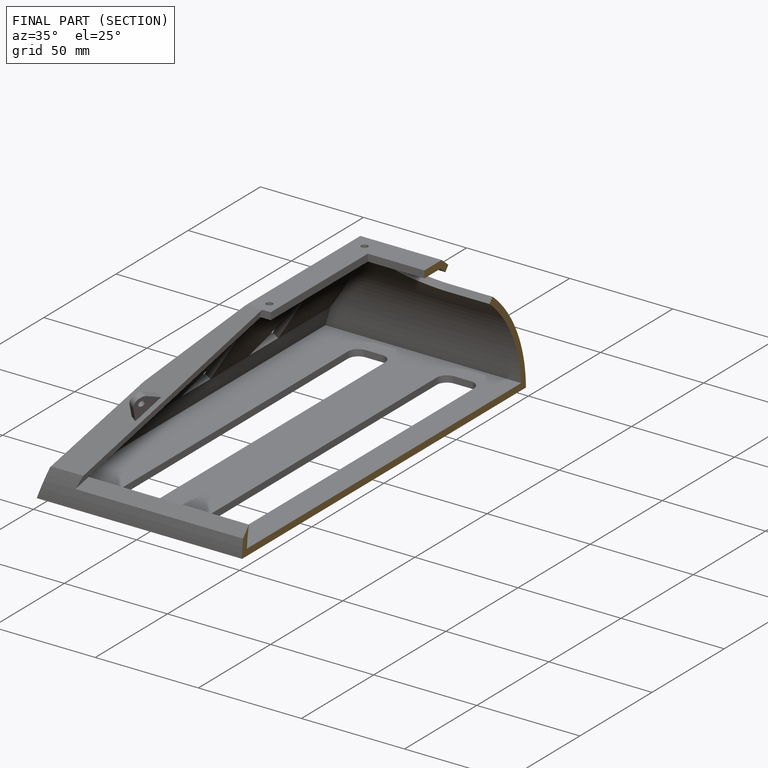
[diagram: finished part — half-section view (interior)]
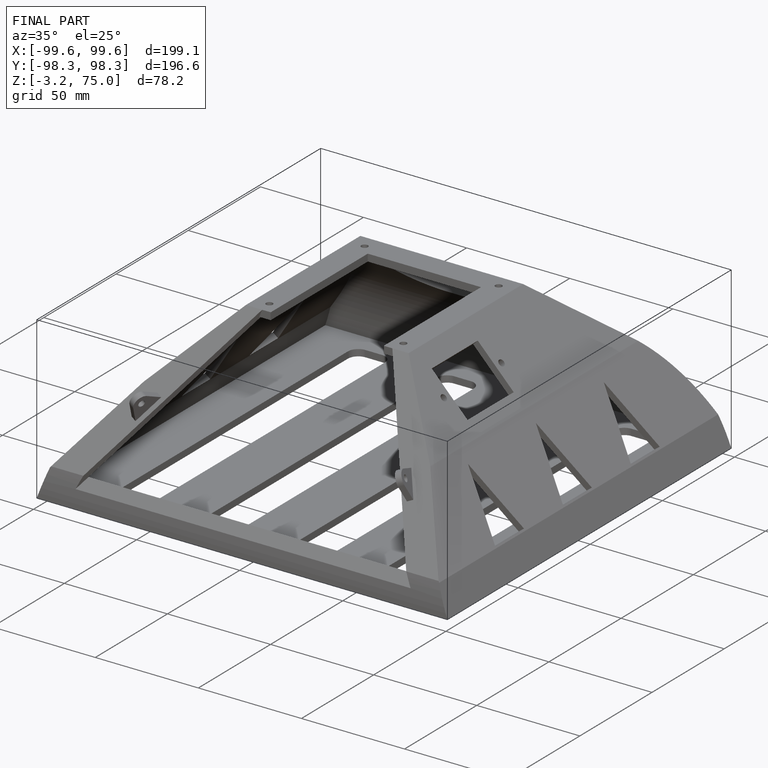
[diagram: finished part — iso view with bounding-box wireframe]
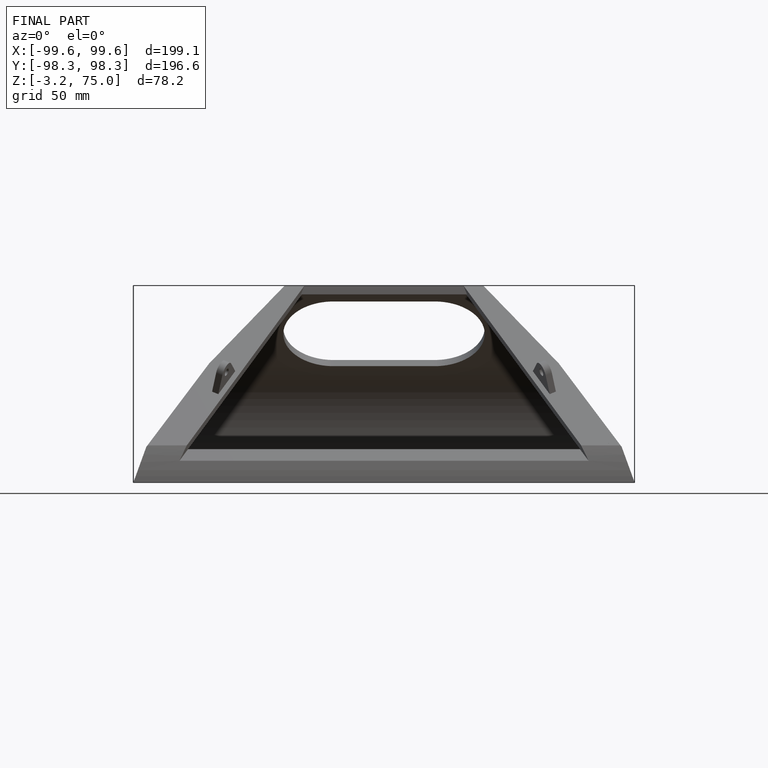
[diagram: finished part — front view with bounding-box wireframe]
